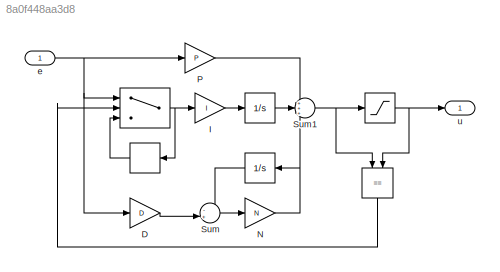
MODEL slx_8a0f448aa3d8
KIND model
CONFIG AbsTol = auto
CONFIG FixedStep = auto
CONFIG MaxStep = auto
CONFIG MinStep = auto
CONFIG RelTol = 1e-3
CONFIG SampleTimeConstraint = Unconstrained
CONFIG Solver = VariableStepAuto
CONFIG SolverMode = Auto
CONFIG SolverName = VariableStepAuto
CONFIG StartTime = 0.0
CONFIG StopTime = 10.0
BLOCK [Integrator]  
  Ports = [1, 1]
BLOCK [Saturate]   
  InputPortMap = u0
  LowerLimit = sat_lim_min
  Ports = [1, 1]
  UpperLimit = sat_lim_max
BLOCK [Integrator]    
  Ports = [1, 1]
BLOCK [Memory]     
BLOCK [Switch]      
  InputSameDT = off
  SaturateOnIntegerOverflow = off
  Threshold = 0.5
BLOCK [RelationalOperator]        
  InputSameDT = off
  Operator = ==
  OutDataTypeStr = boolean
  Ports = [2, 1]
BLOCK [Gain] D
  Gain = D
  OutDataTypeStr = Inherit: Inherit via internal rule
  ParamDataTypeStr = Inherit: Inherit via internal rule
  SaturateOnIntegerOverflow = off
BLOCK [Gain] I
  Gain = I
  OutDataTypeStr = Inherit: Inherit via internal rule
  ParamDataTypeStr = Inherit: Inherit via internal rule
  SaturateOnIntegerOverflow = off
BLOCK [Gain] N
  Gain = N
  OutDataTypeStr = Inherit: Inherit via internal rule
  ParamDataTypeStr = Inherit: Inherit via internal rule
  SaturateOnIntegerOverflow = off
BLOCK [Gain] P
  Gain = P
  OutDataTypeStr = Inherit: Inherit via internal rule
  ParamDataTypeStr = Inherit: Inherit via internal rule
  SaturateOnIntegerOverflow = off
BLOCK [Sum] Sum
  IconShape = round
  InputSameDT = off
  Inputs = -+|
  OutDataTypeStr = Inherit: Inherit via internal rule
  Ports = [2, 1]
  SaturateOnIntegerOverflow = off
BLOCK [Sum] Sum1
  IconShape = round
  InputSameDT = off
  Inputs = +++
  OutDataTypeStr = Inherit: Inherit via internal rule
  Ports = [3, 1]
  SaturateOnIntegerOverflow = off
BLOCK [Inport] e
  IconDisplay = Port number
BLOCK [Outport] u
  IconDisplay = Port number
LINE        :1 ->      :2
NET      :1 ->     :1, I:1
LINE     :1 ->      :3
LINE    :1 -> Sum:1
NET   :1 ->        :2, u:1
LINE  :1 -> Sum1:2
LINE D:1 -> Sum:2
LINE I:1 ->  :1
NET N:1 ->    :1, Sum1:3
LINE P:1 -> Sum1:1
NET Sum1:1 ->        :1,   :1
LINE Sum:1 -> N:1
NET e:1 ->      :1, D:1, P:1
note: NET lines group one-source signal fan-out (src -> all destinations, sorted); 1:1 wires keep LINE
